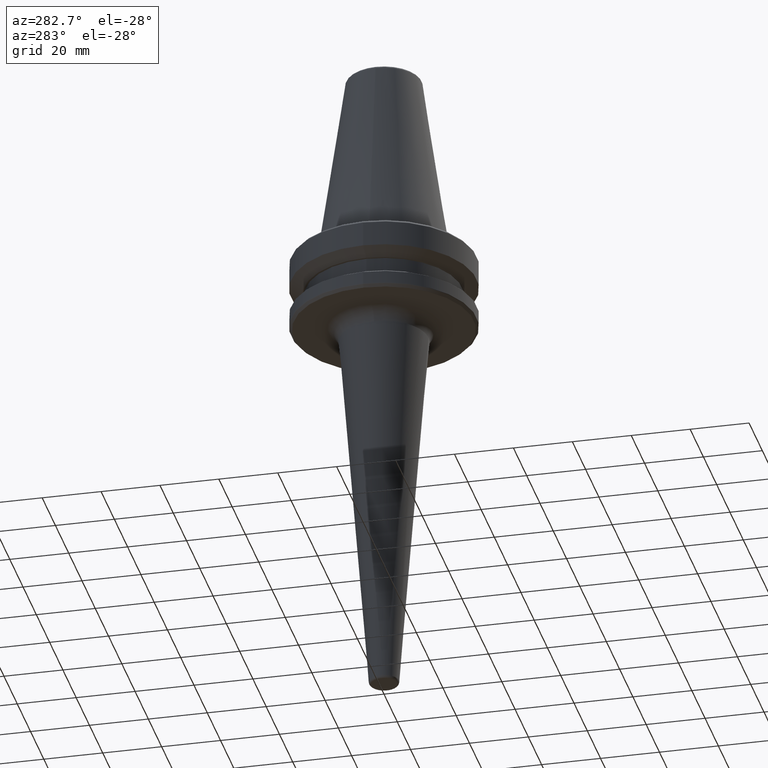
[diagram: clean part render]
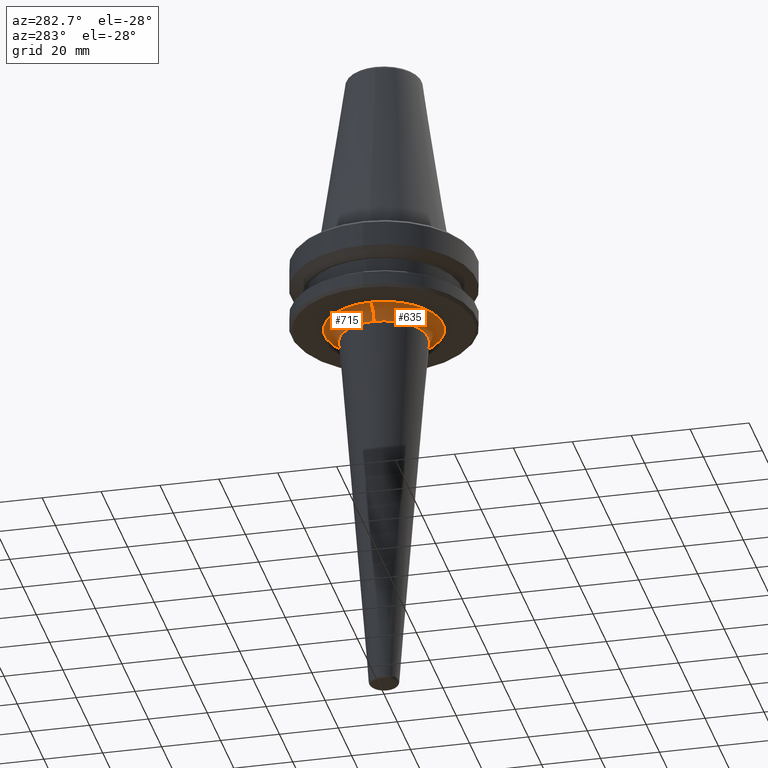
[diagram: same view with one multi-face feature highlighted, each face labeled with its STEP entity id]
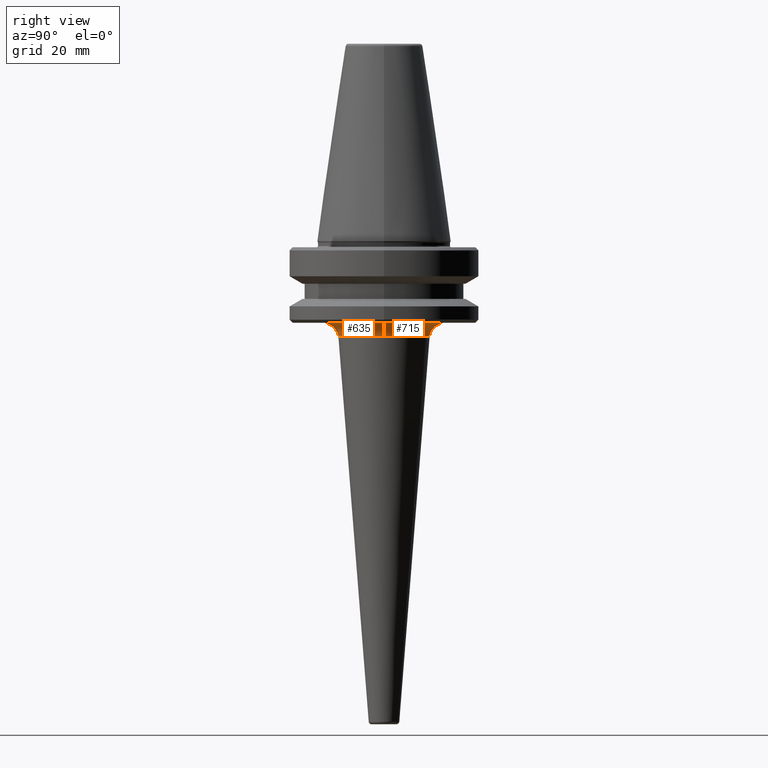
[diagram: same view with one multi-face feature highlighted, each face labeled with its STEP entity id]
A machine part, auxiliary view. The highlighted faces form ONE feature: a constant-radius fillet chain: 2 tangent blend faces with common blend radius 5 mm. The faces share edges in the B-rep.
A second angle (right view) of the same feature is appended — it is thin or edge-on in the first view.
Their STEP definitions:
[1] entity #715 (Torus):
#9 = AXIS2_PLACEMENT_3D ( 'NONE', #592, #114, #684 ) ;
#23 = EDGE_CURVE ( 'NONE', #827, #302, #447, .T. ) ;
#65 = CARTESIAN_POINT ( 'NONE',  ( -20.08927946596435600, 4.879094302861149800E-015, -27.00000000000000400 ) ) ;
#114 = DIRECTION ( 'NONE',  ( 0.0000000000000000000, 0.0000000000000000000, -1.000000000000000000 ) ) ;
#126 = ORIENTED_EDGE ( 'NONE', *, *, #868, .F. ) ;
#160 = CARTESIAN_POINT ( 'NONE',  ( 20.08927946596434900, 7.339321482378138800E-015, -32.00000000000000000 ) ) ;
#182 = VERTEX_POINT ( 'NONE', #783 ) ;
#221 = EDGE_LOOP ( 'NONE', ( #1009, #126, #856, #888, #1013 ) ) ;
#226 = DIRECTION ( 'NONE',  ( -0.0000000000000000000, -0.0000000000000000000, 1.000000000000000000 ) ) ;
#234 = DIRECTION ( 'NONE',  ( -0.0000000000000000000, 3.683148268112341600E-017, -1.000000000000000000 ) ) ;
#257 = DIRECTION ( 'NONE',  ( -1.000000000000000000, -1.224646799147353500E-016, 0.0000000000000000000 ) ) ;
#302 = VERTEX_POINT ( 'NONE', #570 ) ;
#424 = TOROIDAL_SURFACE ( 'NONE', #9, 20.08927946596435300, 5.000000000000000000 ) ;
#447 = CIRCLE ( 'NONE', #661, 15.10469279729871100 ) ;
#518 = DIRECTION ( 'NONE',  ( -0.0000000000000000000, -1.000000000000000000, -0.0000000000000000000 ) ) ;
#567 = CIRCLE ( 'NONE', #759, 20.08927946596435300 ) ;
#570 = CARTESIAN_POINT ( 'NONE',  ( 1.849791368631594700E-015, 15.10469279729871100, -31.60770452136080900 ) ) ;
#587 = VERTEX_POINT ( 'NONE', #602 ) ;
#592 = CARTESIAN_POINT ( 'NONE',  ( -4.753169694930506000E-015, 4.879094302861149800E-015, -32.00000000000000000 ) ) ;
#598 = EDGE_CURVE ( 'NONE', #827, #741, #1016, .T. ) ;
#602 = CARTESIAN_POINT ( 'NONE',  ( 20.08927946596434900, 7.339321482378138800E-015, -27.00000000000000400 ) ) ;
#661 = AXIS2_PLACEMENT_3D ( 'NONE', #870, #992, #790 ) ;
#684 = DIRECTION ( 'NONE',  ( -1.000000000000000000, 0.0000000000000000000, 0.0000000000000000000 ) ) ;
#715 = ADVANCED_FACE ( 'NONE', ( #730 ), #424, .F. ) ;
#725 = AXIS2_PLACEMENT_3D ( 'NONE', #1082, #518, #1175 ) ;
#728 = EDGE_CURVE ( 'NONE', #182, #587, #1122, .T. ) ;
#730 = FACE_OUTER_BOUND ( 'NONE', #221, .T. ) ;
#741 = VERTEX_POINT ( 'NONE', #65 ) ;
#759 = AXIS2_PLACEMENT_3D ( 'NONE', #785, #226, #882 ) ;
#783 = CARTESIAN_POINT ( 'NONE',  ( 15.10469279729870500, 7.034103576935441600E-015, -31.60770452136080900 ) ) ;
#785 = CARTESIAN_POINT ( 'NONE',  ( -4.753169694930506000E-015, 4.879094302861149800E-015, -27.00000000000000400 ) ) ;
#790 = DIRECTION ( 'NONE',  ( 0.0000000000000000000, -1.000000000000000000, 0.0000000000000000000 ) ) ;
#794 = CARTESIAN_POINT ( 'NONE',  ( -4.753169694930506000E-015, 4.879094302861149800E-015, -31.60770452136080900 ) ) ;
#817 = EDGE_CURVE ( 'NONE', #587, #741, #567, .T. ) ;
#820 = DIRECTION ( 'NONE',  ( -1.224646799147353200E-016, 1.000000000000000000, 0.0000000000000000000 ) ) ;
#827 = VERTEX_POINT ( 'NONE', #986 ) ;
#856 = ORIENTED_EDGE ( 'NONE', *, *, #23, .F. ) ;
#868 = EDGE_CURVE ( 'NONE', #302, #182, #1057, .T. ) ;
#870 = CARTESIAN_POINT ( 'NONE',  ( -4.753169694930506000E-015, 4.879094302861149800E-015, -31.60770452136080900 ) ) ;
#882 = DIRECTION ( 'NONE',  ( -1.000000000000000000, 0.0000000000000000000, 0.0000000000000000000 ) ) ;
#888 = ORIENTED_EDGE ( 'NONE', *, *, #598, .T. ) ;
#898 = DIRECTION ( 'NONE',  ( 0.0000000000000000000, -1.000000000000000000, 0.0000000000000000000 ) ) ;
#986 = CARTESIAN_POINT ( 'NONE',  ( -15.10469279729871600, 4.879094302861149800E-015, -31.60770452136080900 ) ) ;
#992 = DIRECTION ( 'NONE',  ( -0.0000000000000000000, 3.683148268112341600E-017, -1.000000000000000000 ) ) ;
#1009 = ORIENTED_EDGE ( 'NONE', *, *, #728, .F. ) ;
#1013 = ORIENTED_EDGE ( 'NONE', *, *, #817, .F. ) ;
#1016 = CIRCLE ( 'NONE', #725, 4.999999999999997300 ) ;
#1057 = CIRCLE ( 'NONE', #1086, 15.10469279729871100 ) ;
#1082 = CARTESIAN_POINT ( 'NONE',  ( -20.08927946596435600, 4.879094302861149800E-015, -32.00000000000000000 ) ) ;
#1086 = AXIS2_PLACEMENT_3D ( 'NONE', #794, #234, #898 ) ;
#1122 = CIRCLE ( 'NONE', #1165, 5.000000000000000900 ) ;
#1165 = AXIS2_PLACEMENT_3D ( 'NONE', #160, #820, #257 ) ;
#1175 = DIRECTION ( 'NONE',  ( 0.0000000000000000000, 0.0000000000000000000, -1.000000000000000000 ) ) ;
[2] entity #635 (Torus):
#65 = CARTESIAN_POINT ( 'NONE',  ( -20.08927946596435600, 4.879094302861149800E-015, -27.00000000000000400 ) ) ;
#77 = DIRECTION ( 'NONE',  ( -0.0000000000000000000, 3.683148268112341600E-017, -1.000000000000000000 ) ) ;
#160 = CARTESIAN_POINT ( 'NONE',  ( 20.08927946596434900, 7.339321482378138800E-015, -32.00000000000000000 ) ) ;
#168 = DIRECTION ( 'NONE',  ( -0.0000000000000000000, -0.0000000000000000000, 1.000000000000000000 ) ) ;
#182 = VERTEX_POINT ( 'NONE', #783 ) ;
#209 = AXIS2_PLACEMENT_3D ( 'NONE', #645, #77, #736 ) ;
#227 = TOROIDAL_SURFACE ( 'NONE', #1049, 20.08927946596435300, 5.000000000000000000 ) ;
#257 = DIRECTION ( 'NONE',  ( -1.000000000000000000, -1.224646799147353500E-016, 0.0000000000000000000 ) ) ;
#281 = CIRCLE ( 'NONE', #1144, 15.10469279729871100 ) ;
#326 = EDGE_CURVE ( 'NONE', #741, #587, #528, .T. ) ;
#383 = ORIENTED_EDGE ( 'NONE', *, *, #728, .T. ) ;
#430 = CARTESIAN_POINT ( 'NONE',  ( -4.753169694930506000E-015, 4.879094302861149800E-015, -31.60770452136080900 ) ) ;
#488 = ORIENTED_EDGE ( 'NONE', *, *, #326, .F. ) ;
#504 = ORIENTED_EDGE ( 'NONE', *, *, #874, .F. ) ;
#518 = DIRECTION ( 'NONE',  ( -0.0000000000000000000, -1.000000000000000000, -0.0000000000000000000 ) ) ;
#524 = DIRECTION ( 'NONE',  ( 0.0000000000000000000, -1.000000000000000000, 0.0000000000000000000 ) ) ;
#528 = CIRCLE ( 'NONE', #1140, 20.08927946596435300 ) ;
#531 = CARTESIAN_POINT ( 'NONE',  ( 0.0000000000000000000, -15.10469279729871100, -31.60770452136080900 ) ) ;
#587 = VERTEX_POINT ( 'NONE', #602 ) ;
#588 = DIRECTION ( 'NONE',  ( -1.000000000000000000, 0.0000000000000000000, 0.0000000000000000000 ) ) ;
#598 = EDGE_CURVE ( 'NONE', #827, #741, #1016, .T. ) ;
#600 = ORIENTED_EDGE ( 'NONE', *, *, #1146, .F. ) ;
#602 = CARTESIAN_POINT ( 'NONE',  ( 20.08927946596434900, 7.339321482378138800E-015, -27.00000000000000400 ) ) ;
#613 = ORIENTED_EDGE ( 'NONE', *, *, #598, .F. ) ;
#635 = ADVANCED_FACE ( 'NONE', ( #959 ), #227, .F. ) ;
#645 = CARTESIAN_POINT ( 'NONE',  ( -4.753169694930506000E-015, 4.879094302861149800E-015, -31.60770452136080900 ) ) ;
#725 = AXIS2_PLACEMENT_3D ( 'NONE', #1082, #518, #1175 ) ;
#728 = EDGE_CURVE ( 'NONE', #182, #587, #1122, .T. ) ;
#732 = CARTESIAN_POINT ( 'NONE',  ( -4.753169694930506000E-015, 4.879094302861149800E-015, -27.00000000000000400 ) ) ;
#736 = DIRECTION ( 'NONE',  ( 0.0000000000000000000, -1.000000000000000000, 0.0000000000000000000 ) ) ;
#741 = VERTEX_POINT ( 'NONE', #65 ) ;
#783 = CARTESIAN_POINT ( 'NONE',  ( 15.10469279729870500, 7.034103576935441600E-015, -31.60770452136080900 ) ) ;
#820 = DIRECTION ( 'NONE',  ( -1.224646799147353200E-016, 1.000000000000000000, 0.0000000000000000000 ) ) ;
#827 = VERTEX_POINT ( 'NONE', #986 ) ;
#831 = DIRECTION ( 'NONE',  ( -1.000000000000000000, 0.0000000000000000000, 0.0000000000000000000 ) ) ;
#874 = EDGE_CURVE ( 'NONE', #182, #1099, #281, .T. ) ;
#959 = FACE_OUTER_BOUND ( 'NONE', #1051, .T. ) ;
#986 = CARTESIAN_POINT ( 'NONE',  ( -15.10469279729871600, 4.879094302861149800E-015, -31.60770452136080900 ) ) ;
#1016 = CIRCLE ( 'NONE', #725, 4.999999999999997300 ) ;
#1049 = AXIS2_PLACEMENT_3D ( 'NONE', #1059, #1147, #588 ) ;
#1051 = EDGE_LOOP ( 'NONE', ( #504, #383, #488, #613, #600 ) ) ;
#1059 = CARTESIAN_POINT ( 'NONE',  ( -4.753169694930506000E-015, 4.879094302861149800E-015, -32.00000000000000000 ) ) ;
#1082 = CARTESIAN_POINT ( 'NONE',  ( -20.08927946596435600, 4.879094302861149800E-015, -32.00000000000000000 ) ) ;
#1092 = DIRECTION ( 'NONE',  ( -0.0000000000000000000, 3.683148268112341600E-017, -1.000000000000000000 ) ) ;
#1099 = VERTEX_POINT ( 'NONE', #531 ) ;
#1122 = CIRCLE ( 'NONE', #1165, 5.000000000000000900 ) ;
#1140 = AXIS2_PLACEMENT_3D ( 'NONE', #732, #168, #831 ) ;
#1144 = AXIS2_PLACEMENT_3D ( 'NONE', #430, #1092, #524 ) ;
#1146 = EDGE_CURVE ( 'NONE', #1099, #827, #1222, .T. ) ;
#1147 = DIRECTION ( 'NONE',  ( 0.0000000000000000000, 0.0000000000000000000, -1.000000000000000000 ) ) ;
#1165 = AXIS2_PLACEMENT_3D ( 'NONE', #160, #820, #257 ) ;
#1175 = DIRECTION ( 'NONE',  ( 0.0000000000000000000, 0.0000000000000000000, -1.000000000000000000 ) ) ;
#1222 = CIRCLE ( 'NONE', #209, 15.10469279729871100 ) ;